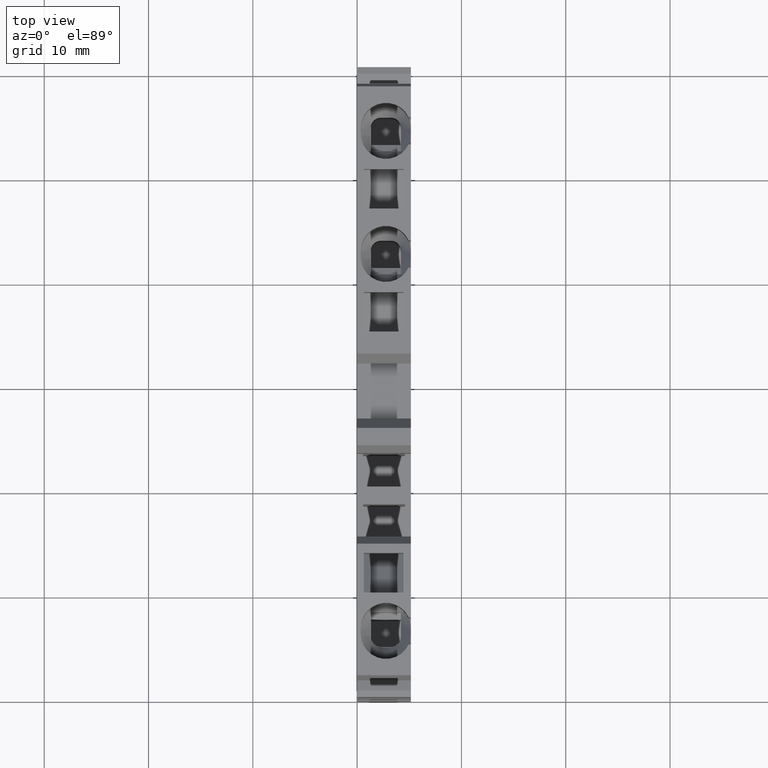
[diagram: clean part render]
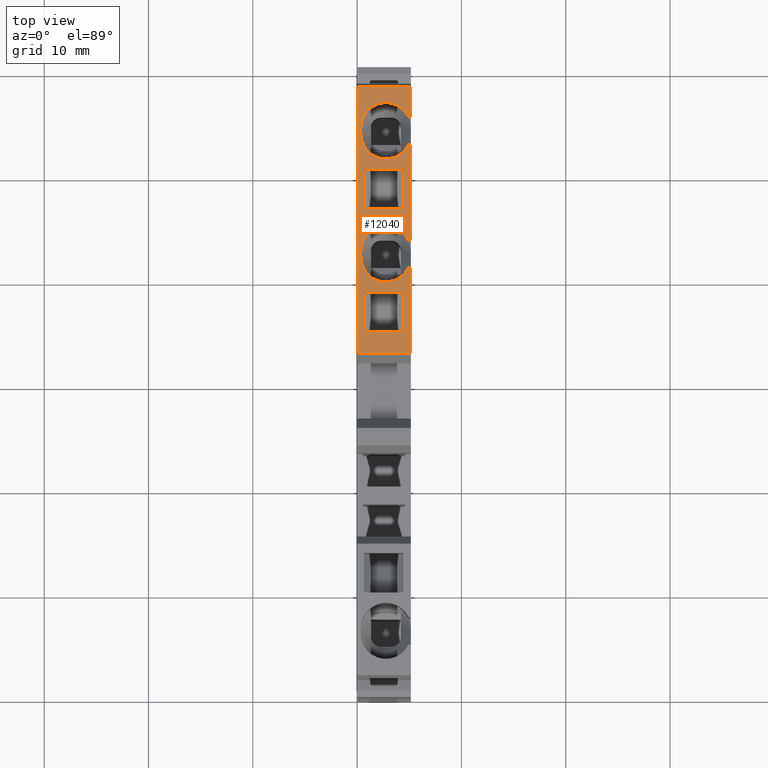
[diagram: same view with one face highlighted and labeled with its STEP entity id]
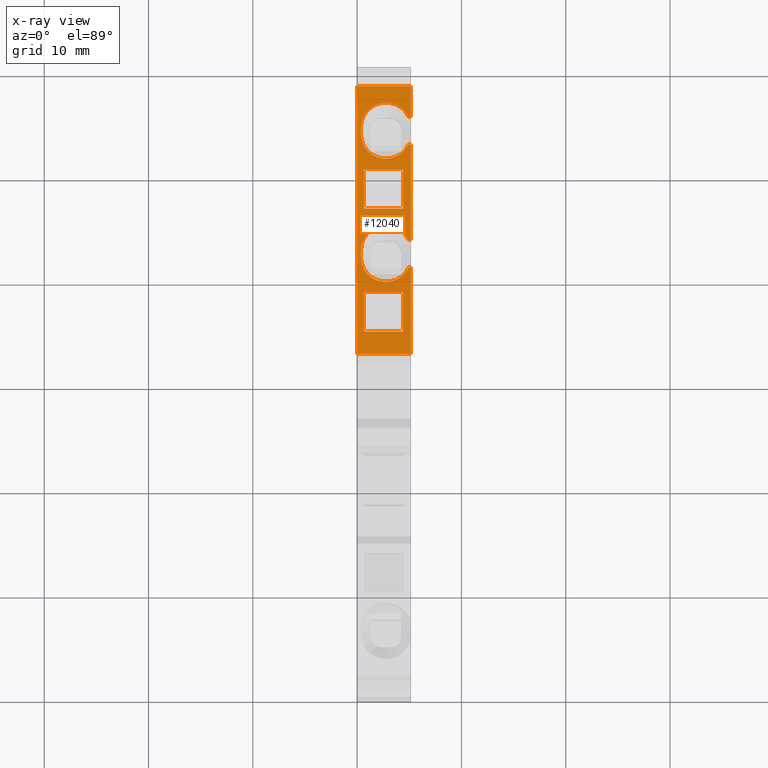
[diagram: x-ray of the same camera — body ghosted, the highlighted face saturated]
A machine part, top view. The second image highlights one B-rep face of the part: STEP entity #12040.
The next image is the same camera in x-ray: the body ghosted, the highlighted face saturated — about 0% of this face is hidden behind the body in this view.
In plain terms, the highlighted planar face has unit normal (-0, 0, 1).
Its self-contained STEP definition (entity closure, byte-faithful):
#200=CARTESIAN_POINT('',(16.3321674513997,-9.15000000000321,
52.9699999999989));
#210=VERTEX_POINT('',#200);
#240=CARTESIAN_POINT('',(-30.6958559619309,-9.15000000000977,52.97));
#250=DIRECTION('',(-1.,-1.1550482792444E-13,2.34604002891103E-14));
#260=VECTOR('',#250,1.);
#270=LINE('',#240,#260);
#280=CARTESIAN_POINT('',(12.5321672216741,-9.15000000000321,
52.9699999999989));
#290=VERTEX_POINT('',#280);
#300=EDGE_CURVE('',#210,#290,#270,.T.);
#4700=CARTESIAN_POINT('',(24.3321672216741,-9.1500000000032,
49.1699999999987));
#4710=VERTEX_POINT('',#4700);
#4760=CARTESIAN_POINT('',(-30.7553307158937,-9.15000000000321,49.17));
#4770=DIRECTION('',(-1.,0.,2.34604002891103E-14));
#4780=VECTOR('',#4770,1.);
#4790=LINE('',#4760,#4780);
#4800=CARTESIAN_POINT('',(28.1321674513997,-9.1500000000032,
49.1699999999986));
#4810=VERTEX_POINT('',#4800);
#4820=EDGE_CURVE('',#4810,#4710,#4790,.T.);
#7790=CARTESIAN_POINT('',(30.5071672216757,-9.15000000000332,
53.4517424229272));
#7800=VERTEX_POINT('',#7790);
#7830=CARTESIAN_POINT('',(31.5071672216757,-9.1500000000032,51.27));
#7840=DIRECTION('',(1.17239551400417E-13,-1.,0.));
#7850=DIRECTION('',(1.,1.17239551400417E-13,0.));
#7860=AXIS2_PLACEMENT_3D('',#7830,#7840,#7850);
#7870=CIRCLE('',#7860,2.4);
#7880=CARTESIAN_POINT('',(31.5071672216758,-9.15000000000319,48.87));
#7890=VERTEX_POINT('',#7880);
#7900=EDGE_CURVE('',#7800,#7890,#7870,.T.);
#8650=CARTESIAN_POINT('',(18.7071672216757,-9.15000000000321,53.67));
#8660=VERTEX_POINT('',#8650);
#8690=CARTESIAN_POINT('',(18.7071672216757,-9.15000000000333,53.67));
#8700=DIRECTION('',(1.71232120239536E-28,-1.46035561493092E-15,1.));
#8710=VECTOR('',#8700,1.);
#8720=LINE('',#8690,#8710);
#8730=CARTESIAN_POINT('',(18.7071672216776,-9.15000000000321,
53.451742422928));
#8740=VERTEX_POINT('',#8730);
#8750=EDGE_CURVE('',#8740,#8660,#8720,.T.);
#10340=CARTESIAN_POINT('',(22.5369482988433,-9.15000000000321,
49.803985858166));
#10350=DIRECTION('',(0.,1.,-0.));
#10360=DIRECTION('',(-1.,0.,0.));
#10370=AXIS2_PLACEMENT_3D('',#10340,#10350,#10360);
#10380=PLANE('',#10370);
#10390=ORIENTED_EDGE('',*,*,#4820,.F.);
#10400=CARTESIAN_POINT('',(24.3321672216741,-9.1500000000032,53.67));
#10410=DIRECTION('',(0.,0.,1.));
#10420=VECTOR('',#10410,1.);
#10430=LINE('',#10400,#10420);
#10440=CARTESIAN_POINT('',(24.3321672216741,-9.1500000000032,
52.9699999999987));
#10450=VERTEX_POINT('',#10440);
#10460=EDGE_CURVE('',#4710,#10450,#10430,.T.);
#10470=ORIENTED_EDGE('',*,*,#10460,.F.);
#10480=CARTESIAN_POINT('',(-30.7553307158937,-9.15000000000321,52.97));
#10490=DIRECTION('',(1.,0.,-2.34604002891103E-14));
#10500=VECTOR('',#10490,1.);
#10510=LINE('',#10480,#10500);
#10520=CARTESIAN_POINT('',(28.1321674513997,-9.15000000000321,
52.9699999999986));
#10530=VERTEX_POINT('',#10520);
#10540=EDGE_CURVE('',#10450,#10530,#10510,.T.);
#10550=ORIENTED_EDGE('',*,*,#10540,.F.);
#10560=CARTESIAN_POINT('',(28.1321674513997,-9.1500000000032,53.67));
#10570=DIRECTION('',(0.,0.,-1.));
#10580=VECTOR('',#10570,1.);
#10590=LINE('',#10560,#10580);
#10600=EDGE_CURVE('',#10530,#4810,#10590,.T.);
#10610=ORIENTED_EDGE('',*,*,#10600,.F.);
#10620=EDGE_LOOP('',(#10610,#10550,#10470,#10390));
#10630=FACE_BOUND('',#10620,.T.);
#10640=CARTESIAN_POINT('',(16.3321674513997,-9.15000000000434,53.67));
#10650=DIRECTION('',(0.,0.,1.));
#10660=VECTOR('',#10650,1.);
#10670=LINE('',#10640,#10660);
#10680=CARTESIAN_POINT('',(16.3321674513997,-9.15000000000321,
49.1699999999989));
#10690=VERTEX_POINT('',#10680);
#10700=EDGE_CURVE('',#10690,#210,#10670,.T.);
#10710=ORIENTED_EDGE('',*,*,#10700,.T.);
#10720=CARTESIAN_POINT('',(-30.6958559619309,-9.15000000000977,49.17));
#10730=DIRECTION('',(1.,1.1550482792444E-13,-2.34604002891103E-14));
#10740=VECTOR('',#10730,1.);
#10750=LINE('',#10720,#10740);
#10760=CARTESIAN_POINT('',(12.5321672216741,-9.15000000000321,
49.169999999999));
#10770=VERTEX_POINT('',#10760);
#10780=EDGE_CURVE('',#10770,#10690,#10750,.T.);
#10790=ORIENTED_EDGE('',*,*,#10780,.T.);
#10800=CARTESIAN_POINT('',(12.5321672216741,-9.15000000000479,53.67));
#10810=DIRECTION('',(0.,0.,-1.));
#10820=VECTOR('',#10810,1.);
#10830=LINE('',#10800,#10820);
#10840=EDGE_CURVE('',#290,#10770,#10830,.T.);
#10850=ORIENTED_EDGE('',*,*,#10840,.T.);
#10860=ORIENTED_EDGE('',*,*,#300,.T.);
#10870=EDGE_LOOP('',(#10860,#10850,#10790,#10710));
#10880=FACE_BOUND('',#10870,.T.);
#10890=CARTESIAN_POINT('',(-30.6958559619301,-9.15000000000321,53.67));
#10900=DIRECTION('',(-1.,0.,0.));
#10910=VECTOR('',#10900,1.);
#10920=LINE('',#10890,#10910);
#10930=CARTESIAN_POINT('',(36.0719729923297,-9.15000000000321,53.67));
#10940=VERTEX_POINT('',#10930);
#10950=CARTESIAN_POINT('',(33.1071672216757,-9.15000000000299,53.67));
#10960=VERTEX_POINT('',#10950);
#10970=EDGE_CURVE('',#10940,#10960,#10920,.T.);
#10980=ORIENTED_EDGE('',*,*,#10970,.F.);
#10990=CARTESIAN_POINT('',(33.1071672216757,-9.15000000000299,53.67));
#11000=DIRECTION('',(-1.71232120239536E-28,1.46035561493092E-15,-1.));
#11010=VECTOR('',#11000,1.);
#11020=LINE('',#10990,#11010);
#11030=CARTESIAN_POINT('',(33.1071672216758,-9.15000000000313,
53.451742422927));
#11040=VERTEX_POINT('',#11030);
#11050=EDGE_CURVE('',#10960,#11040,#11020,.T.);
#11060=ORIENTED_EDGE('',*,*,#11050,.F.);
#11070=CARTESIAN_POINT('',(32.1071672216754,-9.15000000000313,51.27));
#11080=DIRECTION('',(0.,1.,0.));
#11090=DIRECTION('',(1.,0.,0.));
#11100=AXIS2_PLACEMENT_3D('',#11070,#11080,#11090);
#11110=CIRCLE('',#11100,2.4);
#11120=CARTESIAN_POINT('',(32.1071672216754,-9.15000000000313,48.87));
#11130=VERTEX_POINT('',#11120);
#11140=EDGE_CURVE('',#11040,#11130,#11110,.T.);
#11150=ORIENTED_EDGE('',*,*,#11140,.F.);
#11160=CARTESIAN_POINT('',(-30.695855961931,-9.15000000001104,
48.8699999999999));
#11170=DIRECTION('',(1.,1.26065824446187E-13,7.42461647718073E-16));
#11180=VECTOR('',#11170,1.);
#11190=LINE('',#11160,#11180);
#11200=EDGE_CURVE('',#7890,#11130,#11190,.T.);
#11210=ORIENTED_EDGE('',*,*,#11200,.T.);
#11220=ORIENTED_EDGE('',*,*,#7900,.T.);
#11230=CARTESIAN_POINT('',(30.5071672216757,-9.15000000000332,53.67));
#11240=DIRECTION('',(1.71232120239536E-28,-1.46035561493092E-15,1.));
#11250=VECTOR('',#11240,1.);
#11260=LINE('',#11230,#11250);
#11270=CARTESIAN_POINT('',(30.5071672216757,-9.15000000000332,53.67));
#11280=VERTEX_POINT('',#11270);
#11290=EDGE_CURVE('',#7800,#11280,#11260,.T.);
#11300=ORIENTED_EDGE('',*,*,#11290,.F.);
#11310=CARTESIAN_POINT('',(-30.7553307158937,-9.15000000000321,53.67));
#11320=DIRECTION('',(-1.,0.,0.));
#11330=VECTOR('',#11320,1.);
#11340=LINE('',#11310,#11330);
#11350=CARTESIAN_POINT('',(21.3071672216757,-9.15000000000301,53.67));
#11360=VERTEX_POINT('',#11350);
#11370=EDGE_CURVE('',#11280,#11360,#11340,.T.);
#11380=ORIENTED_EDGE('',*,*,#11370,.F.);
#11390=CARTESIAN_POINT('',(21.3071672216757,-9.150000000003,53.67));
#11400=DIRECTION('',(-1.71232120239536E-28,1.46035561493092E-15,-1.));
#11410=VECTOR('',#11400,1.);
#11420=LINE('',#11390,#11410);
#11430=CARTESIAN_POINT('',(21.3071672216758,-9.15000000000314,
53.451742422927));
#11440=VERTEX_POINT('',#11430);
#11450=EDGE_CURVE('',#11360,#11440,#11420,.T.);
#11460=ORIENTED_EDGE('',*,*,#11450,.F.);
#11470=CARTESIAN_POINT('',(20.3071672216754,-9.15000000000314,51.27));
#11480=DIRECTION('',(0.,1.,0.));
#11490=DIRECTION('',(1.,0.,0.));
#11500=AXIS2_PLACEMENT_3D('',#11470,#11480,#11490);
#11510=CIRCLE('',#11500,2.4);
#11520=CARTESIAN_POINT('',(20.3071672216737,-9.15000000000314,48.87));
#11530=VERTEX_POINT('',#11520);
#11540=EDGE_CURVE('',#11440,#11530,#11510,.T.);
#11550=ORIENTED_EDGE('',*,*,#11540,.F.);
#11560=CARTESIAN_POINT('',(-30.6958559619308,-9.15000000000956,
48.8699999999999));
#11570=DIRECTION('',(1.,1.26065824446187E-13,7.42461647718073E-16));
#11580=VECTOR('',#11570,1.);
#11590=LINE('',#11560,#11580);
#11600=CARTESIAN_POINT('',(19.7071672216757,-9.15000000000321,48.87));
#11610=VERTEX_POINT('',#11600);
#11620=EDGE_CURVE('',#11610,#11530,#11590,.T.);
#11630=ORIENTED_EDGE('',*,*,#11620,.T.);
#11640=CARTESIAN_POINT('',(19.7071672216757,-9.15000000000321,51.27));
#11650=DIRECTION('',(0.,-1.,0.));
#11660=DIRECTION('',(1.,0.,0.));
#11670=AXIS2_PLACEMENT_3D('',#11640,#11650,#11660);
#11680=CIRCLE('',#11670,2.4);
#11690=EDGE_CURVE('',#8740,#11610,#11680,.T.);
#11700=ORIENTED_EDGE('',*,*,#11690,.T.);
#11710=ORIENTED_EDGE('',*,*,#8750,.F.);
#11720=CARTESIAN_POINT('',(-30.6958559619301,-9.15000000000321,53.67));
#11730=DIRECTION('',(1.,0.,0.));
#11740=VECTOR('',#11730,1.);
#11750=LINE('',#11720,#11740);
#11760=CARTESIAN_POINT('',(10.4418215966526,-9.15000000000319,53.67));
#11770=VERTEX_POINT('',#11760);
#11780=EDGE_CURVE('',#11770,#8660,#11750,.T.);
#11790=ORIENTED_EDGE('',*,*,#11780,.T.);
#11800=CARTESIAN_POINT('',(10.4418215966525,-9.15000000000321,53.67));
#11810=DIRECTION('',(0.,0.,-1.));
#11820=VECTOR('',#11810,1.);
#11830=LINE('',#11800,#11820);
#11840=CARTESIAN_POINT('',(10.4418215966526,-9.15000000000319,48.52));
#11850=VERTEX_POINT('',#11840);
#11860=EDGE_CURVE('',#11770,#11850,#11830,.T.);
#11870=ORIENTED_EDGE('',*,*,#11860,.F.);
#11880=CARTESIAN_POINT('',(-30.6958559619301,-9.15000000000321,48.52));
#11890=DIRECTION('',(1.,0.,0.));
#11900=VECTOR('',#11890,1.);
#11910=LINE('',#11880,#11900);
#11920=CARTESIAN_POINT('',(36.0719729923297,-9.1500000000032,48.52));
#11930=VERTEX_POINT('',#11920);
#11940=EDGE_CURVE('',#11850,#11930,#11910,.T.);
#11950=ORIENTED_EDGE('',*,*,#11940,.F.);
#11960=CARTESIAN_POINT('',(36.0719729923297,-9.1500000000032,53.67));
#11970=DIRECTION('',(0.,0.,1.));
#11980=VECTOR('',#11970,1.);
#11990=LINE('',#11960,#11980);
#12000=EDGE_CURVE('',#11930,#10940,#11990,.T.);
#12010=ORIENTED_EDGE('',*,*,#12000,.F.);
#12020=EDGE_LOOP('',(#12010,#11950,#11870,#11790,#11710,#11700,#11630,
#11550,#11460,#11380,#11300,#11220,#11210,#11150,#11060,#10980));
#12030=FACE_OUTER_BOUND('',#12020,.T.);
#12040=ADVANCED_FACE('',(#10630,#10880,#12030),#10380,.T.);